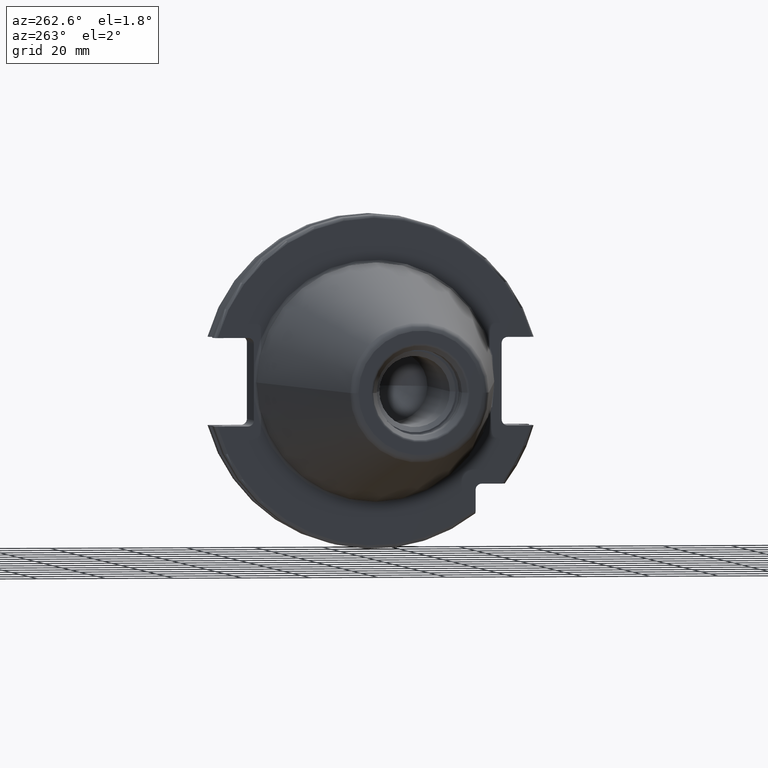
[diagram: clean part render]
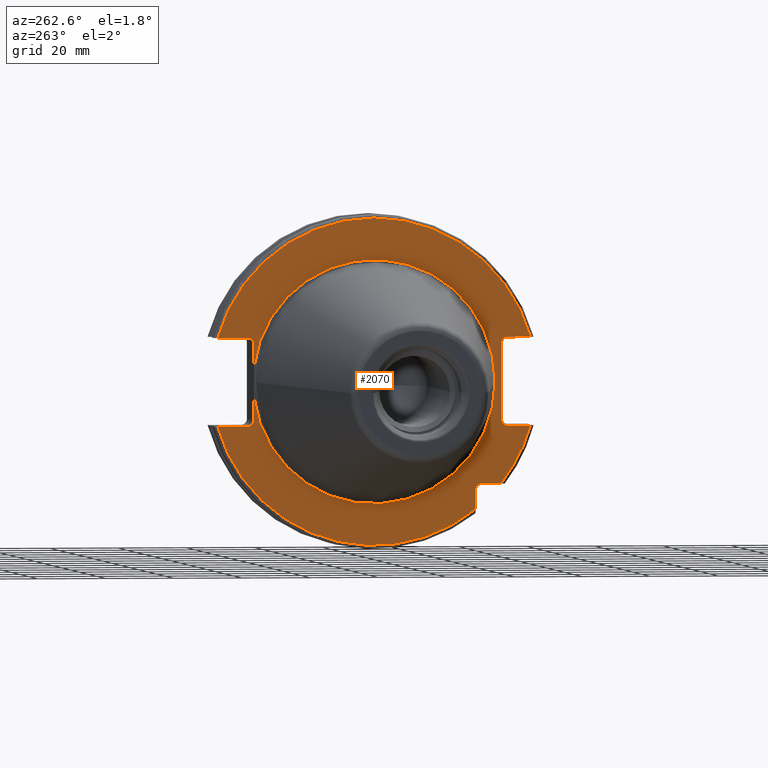
[diagram: same view with one face highlighted and labeled with its STEP entity id]
A machine part, auxiliary view. The second image highlights one B-rep face of the part: STEP entity #2070.
In plain terms, the highlighted planar face has unit normal (1, 0, 0).
Its self-contained STEP definition (entity closure, byte-faithful):
#105=CARTESIAN_POINT('',(3.2E0,3.53E1,-4.414818795828E0));
#117=CARTESIAN_POINT('',(3.2E0,0.E0,0.E0));
#118=DIRECTION('',(-1.E0,0.E0,0.E0));
#119=DIRECTION('',(0.E0,9.922698524245E-1,-1.240989120402E-1));
#120=AXIS2_PLACEMENT_3D('',#117,#118,#119);
#135=CARTESIAN_POINT('',(3.2E0,3.705E1,1.115E1));
#136=DIRECTION('',(1.E0,0.E0,0.E0));
#137=DIRECTION('',(0.E0,0.E0,1.E0));
#138=AXIS2_PLACEMENT_3D('',#135,#136,#137);
#195=CARTESIAN_POINT('',(3.2E0,-3.925E1,-1.115E1));
#196=DIRECTION('',(1.E0,0.E0,0.E0));
#197=DIRECTION('',(0.E0,0.E0,-1.E0));
#198=AXIS2_PLACEMENT_3D('',#195,#196,#197);
#266=CARTESIAN_POINT('',(3.2E0,3.705E1,-1.115E1));
#267=DIRECTION('',(1.E0,0.E0,0.E0));
#268=DIRECTION('',(0.E0,-1.E0,0.E0));
#269=AXIS2_PLACEMENT_3D('',#266,#267,#268);
#271=DIRECTION('',(0.E0,1.E0,0.E0));
#272=VECTOR('',#271,6.711493733886E0);
#273=CARTESIAN_POINT('',(3.2E0,-4.596149373389E1,1.29E1));
#274=LINE('',#273,#272);
#275=DIRECTION('',(0.E0,0.E0,1.E0));
#276=VECTOR('',#275,2.23E1);
#277=CARTESIAN_POINT('',(3.2E0,-3.75E1,-1.115E1));
#278=LINE('',#277,#276);
#279=DIRECTION('',(0.E0,1.E0,0.E0));
#280=VECTOR('',#279,6.711493733886E0);
#281=CARTESIAN_POINT('',(3.2E0,-4.596149373389E1,-1.29E1));
#282=LINE('',#281,#280);
#283=CARTESIAN_POINT('',(3.2E0,0.E0,0.E0));
#284=DIRECTION('',(-1.E0,0.E0,0.E0));
#285=DIRECTION('',(0.E0,-7.803888060170E-1,-6.252945797329E-1));
#286=AXIS2_PLACEMENT_3D('',#283,#284,#285);
#288=DIRECTION('',(0.E0,-1.E0,0.E0));
#289=VECTOR('',#288,5.653810627237E0);
#290=CARTESIAN_POINT('',(3.2E0,-3.16E1,-2.985E1));
#291=LINE('',#290,#289);
#292=DIRECTION('',(0.E0,0.E0,1.E0));
#293=VECTOR('',#292,5.653810627237E0);
#294=CARTESIAN_POINT('',(3.2E0,-2.985E1,-3.725381062724E1));
#295=LINE('',#294,#293);
#296=CARTESIAN_POINT('',(3.2E0,0.E0,0.E0));
#297=DIRECTION('',(-1.E0,0.E0,0.E0));
#298=DIRECTION('',(0.E0,9.627964123359E-1,-2.702278083268E-1));
#299=AXIS2_PLACEMENT_3D('',#296,#297,#298);
#301=DIRECTION('',(0.E0,-1.E0,0.E0));
#302=VECTOR('',#301,8.911493733886E0);
#303=CARTESIAN_POINT('',(3.2E0,4.596149373389E1,-1.29E1));
#304=LINE('',#303,#302);
#305=DIRECTION('',(0.E0,0.E0,-1.E0));
#306=VECTOR('',#305,6.735181204172E0);
#307=CARTESIAN_POINT('',(3.2E0,3.53E1,-4.414818795828E0));
#308=LINE('',#307,#306);
#309=DIRECTION('',(0.E0,0.E0,-1.E0));
#310=VECTOR('',#309,6.735181204172E0);
#311=CARTESIAN_POINT('',(3.2E0,3.53E1,1.115E1));
#312=LINE('',#311,#310);
#313=DIRECTION('',(0.E0,-1.E0,0.E0));
#314=VECTOR('',#313,8.911493733886E0);
#315=CARTESIAN_POINT('',(3.2E0,4.596149373389E1,1.29E1));
#316=LINE('',#315,#314);
#317=CARTESIAN_POINT('',(3.2E0,0.E0,0.E0));
#318=DIRECTION('',(1.E0,0.E0,0.E0));
#319=DIRECTION('',(0.E0,9.627964123359E-1,2.702278083268E-1));
#320=AXIS2_PLACEMENT_3D('',#317,#318,#319);
#331=CARTESIAN_POINT('',(3.2E0,-3.925E1,1.115E1));
#332=DIRECTION('',(1.E0,0.E0,0.E0));
#333=DIRECTION('',(0.E0,1.E0,0.E0));
#334=AXIS2_PLACEMENT_3D('',#331,#332,#333);
#345=CARTESIAN_POINT('',(3.2E0,4.596149373389E1,1.29E1));
#352=CARTESIAN_POINT('',(3.2E0,-4.596149373389E1,1.29E1));
#746=CARTESIAN_POINT('',(3.2E0,-3.16E1,-3.16E1));
#747=DIRECTION('',(1.E0,0.E0,0.E0));
#748=DIRECTION('',(0.E0,1.E0,0.E0));
#749=AXIS2_PLACEMENT_3D('',#746,#747,#748);
#755=CARTESIAN_POINT('',(3.2E0,4.596149373389E1,-1.29E1));
#790=CARTESIAN_POINT('',(3.2E0,-4.596149373389E1,-1.29E1));
#797=CARTESIAN_POINT('',(3.2E0,-3.725381062724E1,-2.985E1));
#936=CARTESIAN_POINT('',(3.2E0,3.53E1,4.414818795828E0));
#947=CARTESIAN_POINT('',(3.2E0,0.E0,0.E0));
#948=DIRECTION('',(1.E0,0.E0,0.E0));
#949=DIRECTION('',(0.E0,9.922698524245E-1,1.240989120402E-1));
#950=AXIS2_PLACEMENT_3D('',#947,#948,#949);
#1408=CARTESIAN_POINT('',(3.2E0,-3.5575E1,0.E0));
#1410=VERTEX_POINT('',#1408);
#1534=VERTEX_POINT('',#936);
#1536=VERTEX_POINT('',#105);
#1539=VERTEX_POINT('',#345);
#1540=VERTEX_POINT('',#352);
#1543=VERTEX_POINT('',#755);
#1544=VERTEX_POINT('',#790);
#1567=CARTESIAN_POINT('',(3.2E0,-2.985E1,-3.725381062724E1));
#1568=VERTEX_POINT('',#1567);
#1570=CARTESIAN_POINT('',(3.2E0,-3.75E1,-1.115E1));
#1572=VERTEX_POINT('',#1570);
#1574=CARTESIAN_POINT('',(3.2E0,-3.925E1,-1.29E1));
#1576=VERTEX_POINT('',#1574);
#1578=CARTESIAN_POINT('',(3.2E0,-3.925E1,1.29E1));
#1580=VERTEX_POINT('',#1578);
#1582=CARTESIAN_POINT('',(3.2E0,-3.75E1,1.115E1));
#1584=VERTEX_POINT('',#1582);
#1586=CARTESIAN_POINT('',(3.2E0,3.53E1,1.115E1));
#1588=VERTEX_POINT('',#1586);
#1590=CARTESIAN_POINT('',(3.2E0,3.705E1,1.29E1));
#1592=VERTEX_POINT('',#1590);
#1594=CARTESIAN_POINT('',(3.2E0,3.705E1,-1.29E1));
#1596=VERTEX_POINT('',#1594);
#1598=CARTESIAN_POINT('',(3.2E0,3.53E1,-1.115E1));
#1600=VERTEX_POINT('',#1598);
#1605=CARTESIAN_POINT('',(3.2E0,-2.985E1,-3.16E1));
#1606=CARTESIAN_POINT('',(3.2E0,-3.16E1,-2.985E1));
#1607=VERTEX_POINT('',#1605);
#1608=VERTEX_POINT('',#1606);
#1667=VERTEX_POINT('',#797);
#2034=CARTESIAN_POINT('',(3.2E0,0.E0,0.E0));
#2035=DIRECTION('',(1.E0,0.E0,0.E0));
#2036=DIRECTION('',(0.E0,-1.E0,0.E0));
#2037=AXIS2_PLACEMENT_3D('',#2034,#2035,#2036);
#2038=PLANE('',#2037);
#2040=ORIENTED_EDGE('',*,*,#2039,.T.);
#2042=ORIENTED_EDGE('',*,*,#2041,.F.);
#2043=ORIENTED_EDGE('',*,*,#1902,.F.);
#2044=ORIENTED_EDGE('',*,*,#1919,.F.);
#2045=ORIENTED_EDGE('',*,*,#1953,.F.);
#2047=ORIENTED_EDGE('',*,*,#2046,.F.);
#2049=ORIENTED_EDGE('',*,*,#2048,.F.);
#2051=ORIENTED_EDGE('',*,*,#2050,.F.);
#2053=ORIENTED_EDGE('',*,*,#2052,.F.);
#2055=ORIENTED_EDGE('',*,*,#2054,.F.);
#2056=ORIENTED_EDGE('',*,*,#1994,.T.);
#2057=ORIENTED_EDGE('',*,*,#2029,.F.);
#2058=ORIENTED_EDGE('',*,*,#1827,.F.);
#2059=ORIENTED_EDGE('',*,*,#1810,.T.);
#2061=ORIENTED_EDGE('',*,*,#2060,.F.);
#2062=ORIENTED_EDGE('',*,*,#1822,.F.);
#2063=ORIENTED_EDGE('',*,*,#1846,.F.);
#2065=ORIENTED_EDGE('',*,*,#2064,.F.);
#2067=ORIENTED_EDGE('',*,*,#2066,.T.);
#2068=EDGE_LOOP('',(#2040,#2042,#2043,#2044,#2045,#2047,#2049,#2051,#2053,#2055,
#2056,#2057,#2058,#2059,#2061,#2062,#2063,#2065,#2067));
#2069=FACE_OUTER_BOUND('',#2068,.F.);
#2070=ADVANCED_FACE('',(#2069),#2038,.F.);
#121=CIRCLE('',#120,3.5575E1);
#139=CIRCLE('',#138,1.75E0);
#199=CIRCLE('',#198,1.75E0);
#270=CIRCLE('',#269,1.75E0);
#287=CIRCLE('',#286,4.77375E1);
#300=CIRCLE('',#299,4.77375E1);
#321=CIRCLE('',#320,4.77375E1);
#335=CIRCLE('',#334,1.75E0);
#750=CIRCLE('',#749,1.75E0);
#951=CIRCLE('',#950,3.5575E1);
#1810=EDGE_CURVE('',#1536,#1410,#121,.T.);
#1822=EDGE_CURVE('',#1588,#1534,#312,.T.);
#1827=EDGE_CURVE('',#1536,#1600,#308,.T.);
#1846=EDGE_CURVE('',#1592,#1588,#139,.T.);
#1902=EDGE_CURVE('',#1572,#1584,#278,.T.);
#1919=EDGE_CURVE('',#1576,#1572,#199,.T.);
#1953=EDGE_CURVE('',#1544,#1576,#282,.T.);
#1994=EDGE_CURVE('',#1543,#1596,#304,.T.);
#2029=EDGE_CURVE('',#1600,#1596,#270,.T.);
#2039=EDGE_CURVE('',#1540,#1580,#274,.T.);
#2041=EDGE_CURVE('',#1584,#1580,#335,.T.);
#2046=EDGE_CURVE('',#1667,#1544,#287,.T.);
#2048=EDGE_CURVE('',#1608,#1667,#291,.T.);
#2050=EDGE_CURVE('',#1607,#1608,#750,.T.);
#2052=EDGE_CURVE('',#1568,#1607,#295,.T.);
#2054=EDGE_CURVE('',#1543,#1568,#300,.T.);
#2060=EDGE_CURVE('',#1534,#1410,#951,.T.);
#2064=EDGE_CURVE('',#1539,#1592,#316,.T.);
#2066=EDGE_CURVE('',#1539,#1540,#321,.T.);